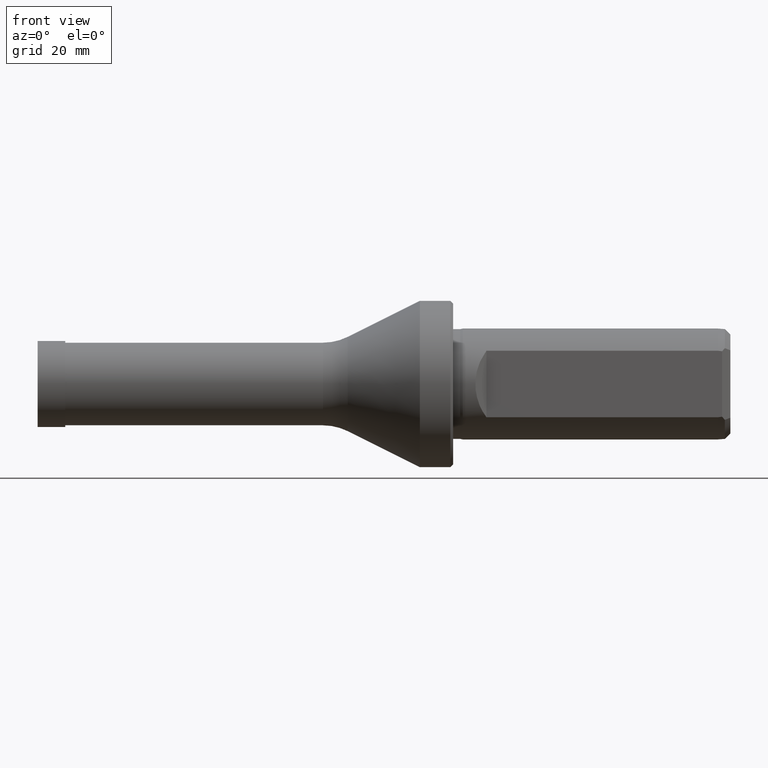
[diagram: clean part render]
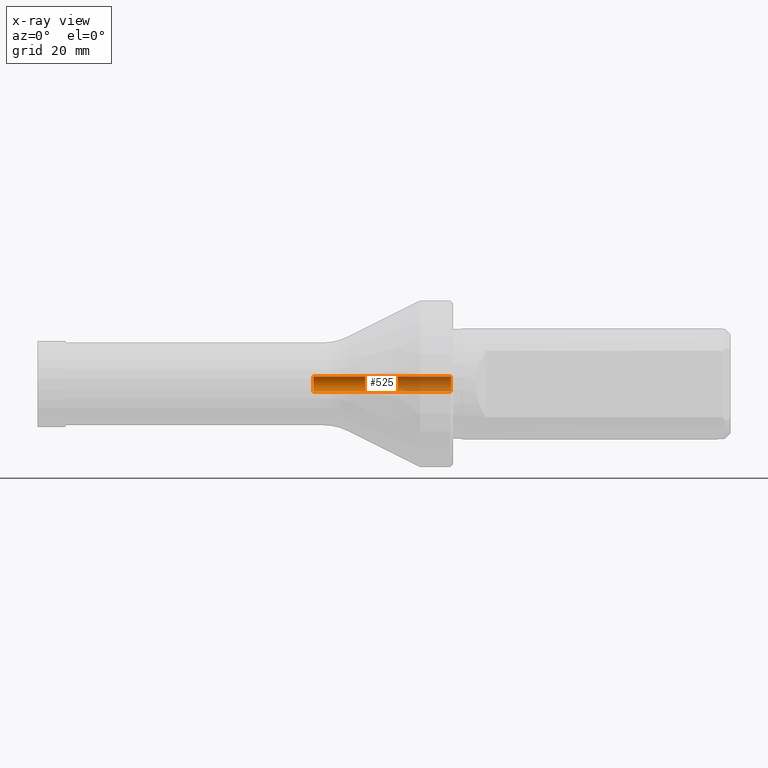
[diagram: x-ray — body ghosted, one internal face saturated and labeled with its STEP entity id]
A machine part, front view, then the same camera in x-ray: the body is ghosted and one INTERNAL B-rep face — a face not visible from any outside direction — is saturated and labeled: STEP entity #525.
In plain terms, the highlighted cylindrical surface (edge-blend (fillet) strip) has radius 1.35 mm, axis along (-1, -0, -0).
Its self-contained STEP definition (entity closure, byte-faithful):
#2 = EDGE_CURVE ( 'NONE', #544, #953, #657, .T. ) ;
#51 = VECTOR ( 'NONE', #979, 1000.000000000000000 ) ;
#68 = EDGE_CURVE ( 'NONE', #1062, #980, #118, .T. ) ;
#118 = CIRCLE ( 'NONE', #977, 1.350000000000003200 ) ;
#161 = AXIS2_PLACEMENT_3D ( 'NONE', #639, #1219, #831 ) ;
#228 = DIRECTION ( 'NONE',  ( -1.000000000000000000, -0.0000000000000000000, -0.0000000000000000000 ) ) ;
#310 = EDGE_CURVE ( 'NONE', #544, #1062, #1216, .T. ) ;
#326 = DIRECTION ( 'NONE',  ( 0.0000000000000000000, 0.0000000000000000000, 1.000000000000000000 ) ) ;
#327 = CARTESIAN_POINT ( 'NONE',  ( 0.0000000000000000000, 0.0000000000000000000, 1.350000000000001600 ) ) ;
#348 = CYLINDRICAL_SURFACE ( 'NONE', #862, 1.350000000000001600 ) ;
#364 = CARTESIAN_POINT ( 'NONE',  ( 49.26116183568721100, 0.0000000000000000000, -1.350000000000003400 ) ) ;
#372 = EDGE_LOOP ( 'NONE', ( #716, #1008, #523, #679 ) ) ;
#384 = CARTESIAN_POINT ( 'NONE',  ( 49.26116183568721100, 0.0000000000000000000, 0.0000000000000000000 ) ) ;
#405 = VECTOR ( 'NONE', #964, 1000.000000000000000 ) ;
#478 = DIRECTION ( 'NONE',  ( 0.0000000000000000000, 0.0000000000000000000, 1.000000000000000000 ) ) ;
#523 = ORIENTED_EDGE ( 'NONE', *, *, #310, .T. ) ;
#525 = ADVANCED_FACE ( 'NONE', ( #1114 ), #348, .F. ) ;
#532 = LINE ( 'NONE', #1160, #405 ) ;
#544 = VERTEX_POINT ( 'NONE', #1174 ) ;
#639 = CARTESIAN_POINT ( 'NONE',  ( 74.05944059763209000, 0.0000000000000000000, 0.0000000000000000000 ) ) ;
#657 = CIRCLE ( 'NONE', #161, 1.350000000000000100 ) ;
#679 = ORIENTED_EDGE ( 'NONE', *, *, #68, .T. ) ;
#716 = ORIENTED_EDGE ( 'NONE', *, *, #1122, .F. ) ;
#831 = DIRECTION ( 'NONE',  ( 0.0000000000000000000, 0.0000000000000000000, 1.000000000000000000 ) ) ;
#862 = AXIS2_PLACEMENT_3D ( 'NONE', #879, #228, #326 ) ;
#879 = CARTESIAN_POINT ( 'NONE',  ( 0.0000000000000000000, 0.0000000000000000000, 0.0000000000000000000 ) ) ;
#953 = VERTEX_POINT ( 'NONE', #1035 ) ;
#964 = DIRECTION ( 'NONE',  ( -1.000000000000000000, -0.0000000000000000000, -0.0000000000000000000 ) ) ;
#977 = AXIS2_PLACEMENT_3D ( 'NONE', #384, #1054, #478 ) ;
#979 = DIRECTION ( 'NONE',  ( -1.000000000000000000, -0.0000000000000000000, -0.0000000000000000000 ) ) ;
#980 = VERTEX_POINT ( 'NONE', #364 ) ;
#1008 = ORIENTED_EDGE ( 'NONE', *, *, #2, .F. ) ;
#1035 = CARTESIAN_POINT ( 'NONE',  ( 74.05944059763209000, 1.653273178848927600E-016, -1.350000000000000100 ) ) ;
#1054 = DIRECTION ( 'NONE',  ( -1.000000000000000000, -0.0000000000000000000, -0.0000000000000000000 ) ) ;
#1062 = VERTEX_POINT ( 'NONE', #1209 ) ;
#1114 = FACE_OUTER_BOUND ( 'NONE', #372, .T. ) ;
#1122 = EDGE_CURVE ( 'NONE', #953, #980, #532, .T. ) ;
#1160 = CARTESIAN_POINT ( 'NONE',  ( 0.0000000000000000000, 1.653273178848928800E-016, -1.350000000000001600 ) ) ;
#1174 = CARTESIAN_POINT ( 'NONE',  ( 74.05944059763209000, 0.0000000000000000000, 1.350000000000000100 ) ) ;
#1209 = CARTESIAN_POINT ( 'NONE',  ( 49.26116183568721100, 1.653273178848930800E-016, 1.350000000000003400 ) ) ;
#1216 = LINE ( 'NONE', #327, #51 ) ;
#1219 = DIRECTION ( 'NONE',  ( -1.000000000000000000, -0.0000000000000000000, -0.0000000000000000000 ) ) ;